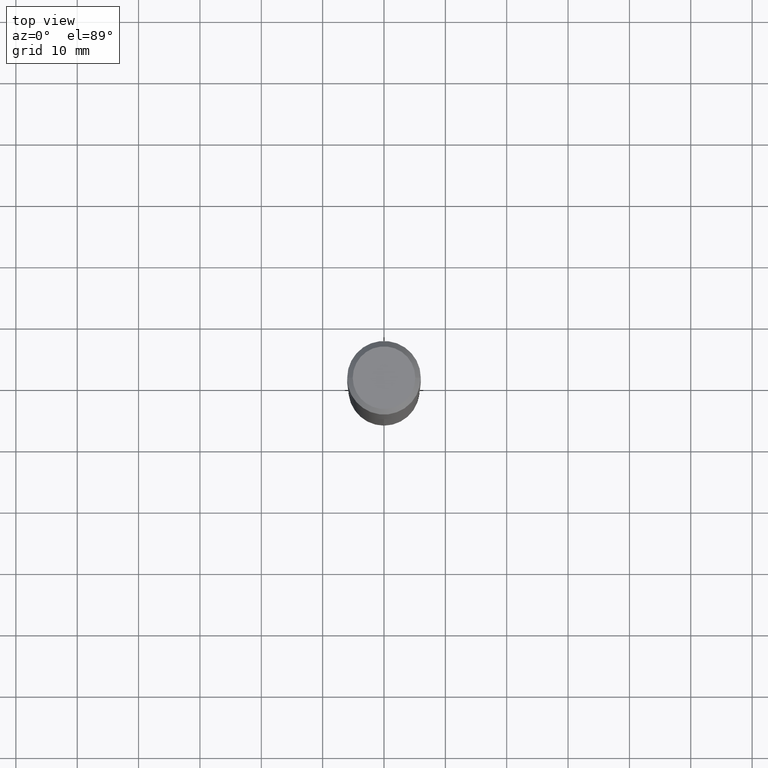
[diagram: clean part render]
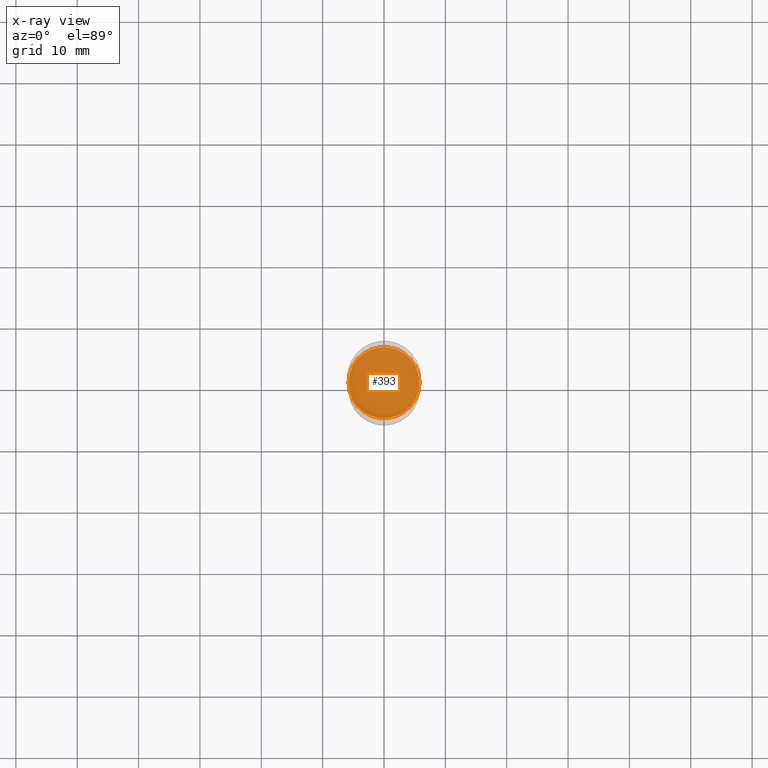
[diagram: x-ray — body ghosted, one internal face saturated and labeled with its STEP entity id]
A machine part, top view, then the same camera in x-ray: the body is ghosted and one INTERNAL B-rep face — a face not visible from any outside direction — is saturated and labeled: STEP entity #393.
In plain terms, the highlighted planar face has unit normal (-0, 0, 1).
Its self-contained STEP definition (entity closure, byte-faithful):
#4 = CARTESIAN_POINT ( 'NONE',  ( 4.525829119606832626E-29, -6.461684513797009689E-15, -1.850700000000000012 ) ) ;
#22 = DIRECTION ( 'NONE',  ( 1.000000000000000000, -6.982962677686264344E-15, 0.000000000000000000 ) ) ;
#66 = DIRECTION ( 'NONE',  ( -2.445468806185136597E-29, 3.491481338843145583E-15, 1.000000000000000000 ) ) ;
#67 = VERTEX_POINT ( 'NONE', #85 ) ;
#84 = AXIS2_PLACEMENT_3D ( 'NONE', #490, #66, #22 ) ;
#85 = CARTESIAN_POINT ( 'NONE',  ( 0.2278499999999999970, -8.052752559907825629E-15, -1.850700000000000012 ) ) ;
#119 = DIRECTION ( 'NONE',  ( -2.438088387897960049E-29, 3.491481338843145188E-15, 1.000000000000000000 ) ) ;
#125 = DIRECTION ( 'NONE',  ( -2.445468806185136597E-29, 3.491481338843145583E-15, 1.000000000000000000 ) ) ;
#141 = ORIENTED_EDGE ( 'NONE', *, *, #142, .F. ) ;
#142 = EDGE_CURVE ( 'NONE', #67, #290, #228, .T. ) ;
#186 = EDGE_CURVE ( 'NONE', #290, #67, #346, .T. ) ;
#197 = FACE_OUTER_BOUND ( 'NONE', #485, .T. ) ;
#204 = ORIENTED_EDGE ( 'NONE', *, *, #186, .F. ) ;
#228 = CIRCLE ( 'NONE', #482, 0.2278499999999999970 ) ;
#231 = DIRECTION ( 'NONE',  ( 1.000000000000000000, -6.982962677686265922E-15, 4.876176775795935793E-29 ) ) ;
#276 = DIRECTION ( 'NONE',  ( 1.000000000000000000, -6.982962677686264344E-15, 0.000000000000000000 ) ) ;
#290 = VERTEX_POINT ( 'NONE', #380 ) ;
#346 = CIRCLE ( 'NONE', #84, 0.2278499999999999970 ) ;
#352 = CARTESIAN_POINT ( 'NONE',  ( 4.525829119606832626E-29, -6.461684513797009689E-15, -1.850700000000000012 ) ) ;
#380 = CARTESIAN_POINT ( 'NONE',  ( -0.2278499999999999970, -4.840063663193510236E-15, -1.850700000000000012 ) ) ;
#393 = ADVANCED_FACE ( 'NONE', ( #197 ), #420, .F. ) ;
#410 = AXIS2_PLACEMENT_3D ( 'NONE', #4, #119, #231 ) ;
#420 = PLANE ( 'NONE',  #410 ) ;
#482 = AXIS2_PLACEMENT_3D ( 'NONE', #352, #125, #276 ) ;
#485 = EDGE_LOOP ( 'NONE', ( #141, #204 ) ) ;
#490 = CARTESIAN_POINT ( 'NONE',  ( 4.525829119606832626E-29, -6.461684513797009689E-15, -1.850700000000000012 ) ) ;